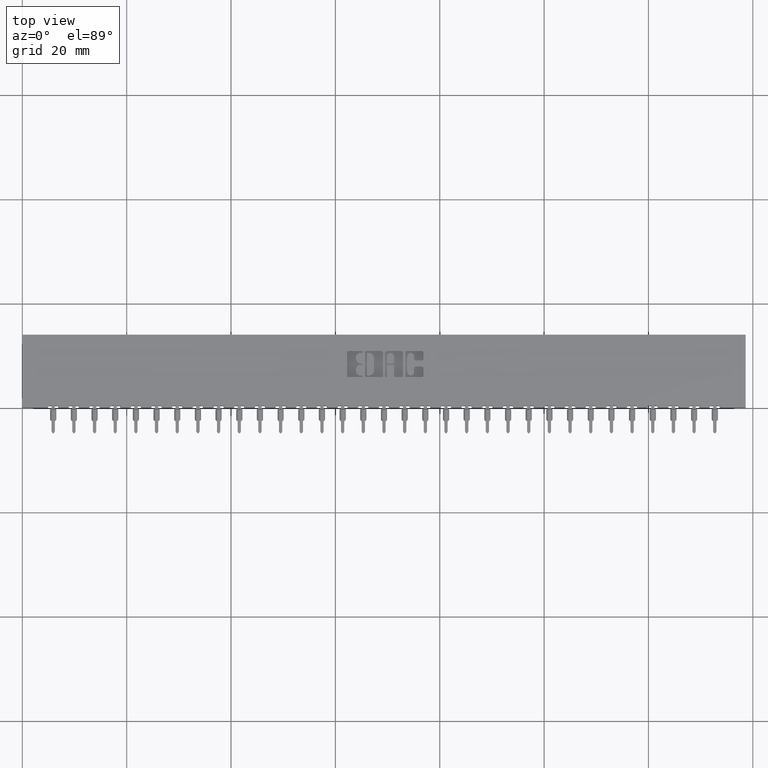
[diagram: clean part render]
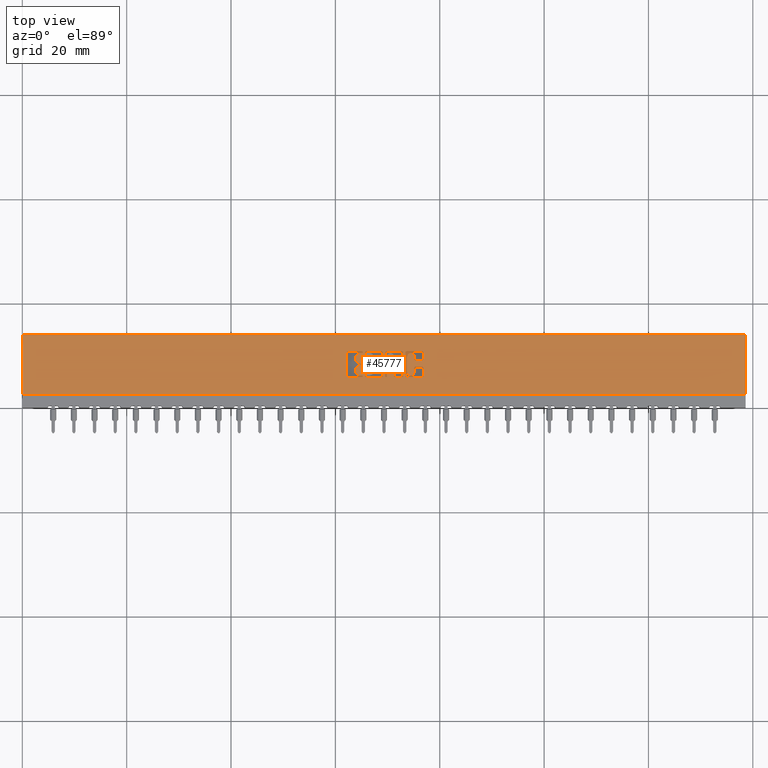
[diagram: same view with one face highlighted and labeled with its STEP entity id]
A machine part, top view. The second image highlights one B-rep face of the part: STEP entity #45777.
In plain terms, the highlighted planar face has unit normal (0, 0, -1).
Its self-contained STEP definition (entity closure, byte-faithful):
#25 = ORIENTED_EDGE ( 'NONE', *, *, #18225, .T. ) ;
#39 = CIRCLE ( 'NONE', #7371, 0.006870969142663458500 ) ;
#191 = AXIS2_PLACEMENT_3D ( 'NONE', #709, #1116, #46219 ) ;
#344 = AXIS2_PLACEMENT_3D ( 'NONE', #41040, #50298, #18938 ) ;
#515 = DIRECTION ( 'NONE',  ( 0.0000000000000000000, -1.000000000000000000, 0.0000000000000000000 ) ) ;
#533 = CARTESIAN_POINT ( 'NONE',  ( 2.930221239177992000, 0.3831578459575297200, 0.0000000000000000000 ) ) ;
#586 = EDGE_CURVE ( 'NONE', #44287, #31469, #43937, .T. ) ;
#601 = AXIS2_PLACEMENT_3D ( 'NONE', #38902, #47726, #33853 ) ;
#709 = CARTESIAN_POINT ( 'NONE',  ( 2.813660155507788000, 0.2366589681657879100, 0.0000000000000000000 ) ) ;
#819 = DIRECTION ( 'NONE',  ( -0.0000000000000000000, 0.0000000000000000000, 1.000000000000000000 ) ) ;
#821 = CIRCLE ( 'NONE', #4432, 0.006870969142663458500 ) ;
#865 = EDGE_CURVE ( 'NONE', #25310, #13126, #48112, .T. ) ;
#1116 = DIRECTION ( 'NONE',  ( -0.0000000000000000000, 0.0000000000000000000, 1.000000000000000000 ) ) ;
#1617 = ORIENTED_EDGE ( 'NONE', *, *, #9022, .T. ) ;
#1719 = CARTESIAN_POINT ( 'NONE',  ( 2.890222383097458700, 0.0000000000000000000, 0.0000000000000000000 ) ) ;
#1766 = DIRECTION ( 'NONE',  ( 0.0000000000000000000, -1.000000000000000000, 0.0000000000000000000 ) ) ;
#1777 = AXIS2_PLACEMENT_3D ( 'NONE', #26082, #53456, #57175 ) ;
#1850 = CARTESIAN_POINT ( 'NONE',  ( 2.761146319917450400, 0.3083133606535456400, 0.0000000000000000000 ) ) ;
#1866 = EDGE_CURVE ( 'NONE', #7632, #11932, #48678, .T. ) ;
#2001 = ORIENTED_EDGE ( 'NONE', *, *, #16145, .F. ) ;
#2078 = CARTESIAN_POINT ( 'NONE',  ( 3.025678631909940500, 0.2366589681657830500, 0.0000000000000000000 ) ) ;
#2157 = CIRCLE ( 'NONE', #6348, 0.006870969142662365600 ) ;
#2186 = LINE ( 'NONE', #23171, #23309 ) ;
#2228 = VECTOR ( 'NONE', #49773, 39.37007874015748100 ) ;
#2237 = DIRECTION ( 'NONE',  ( 1.000000000000000000, 0.0000000000000000000, 0.0000000000000000000 ) ) ;
#2546 = CARTESIAN_POINT ( 'NONE',  ( 3.015862961706167000, 0.3539562271012335300, 0.0000000000000000000 ) ) ;
#2630 = FACE_BOUND ( 'NONE', #2916, .T. ) ;
#2669 = CARTESIAN_POINT ( 'NONE',  ( 0.0000000000000000000, 0.3063502266127576300, 0.0000000000000000000 ) ) ;
#2715 = CARTESIAN_POINT ( 'NONE',  ( 3.025678631909972400, 0.4133410318341949100, 0.0000000000000000000 ) ) ;
#2916 = EDGE_LOOP ( 'NONE', ( #51493, #12978, #35678, #29991, #17059, #57992, #40300, #24093 ) ) ;
#3117 = VECTOR ( 'NONE', #58048, 39.37007874015748100 ) ;
#3295 = CARTESIAN_POINT ( 'NONE',  ( 0.0000000000000000000, 0.4231567020380511100, 0.0000000000000000000 ) ) ;
#3330 = CIRCLE ( 'NONE', #10749, 0.009815670203805798900 ) ;
#3541 = VERTEX_POINT ( 'NONE', #33580 ) ;
#3812 = AXIS2_PLACEMENT_3D ( 'NONE', #6633, #24377, #42143 ) ;
#3835 = DIRECTION ( 'NONE',  ( -0.0000000000000000000, 0.0000000000000000000, 1.000000000000000000 ) ) ;
#3896 = CARTESIAN_POINT ( 'NONE',  ( 2.594770709963010200, 0.4133410318342102300, 0.0000000000000000000 ) ) ;
#3909 = CIRCLE ( 'NONE', #37531, 0.009815670203840221000 ) ;
#3997 = DIRECTION ( 'NONE',  ( -0.0000000000000000000, 0.0000000000000000000, 1.000000000000000000 ) ) ;
#4093 = VERTEX_POINT ( 'NONE', #7388 ) ;
#4388 = CARTESIAN_POINT ( 'NONE',  ( 2.562133606415414500, 0.2405852362473102900, 0.0000000000000000000 ) ) ;
#4401 = VERTEX_POINT ( 'NONE', #43329 ) ;
#4432 = AXIS2_PLACEMENT_3D ( 'NONE', #13244, #40252, #31302 ) ;
#4486 = DIRECTION ( 'NONE',  ( 0.0000000000000000000, 1.000000000000000000, -0.0000000000000000000 ) ) ;
#4632 = VERTEX_POINT ( 'NONE', #10421 ) ;
#4972 = VERTEX_POINT ( 'NONE', #14098 ) ;
#5032 = CARTESIAN_POINT ( 'NONE',  ( 2.900038053301265500, 0.2268432979619832700, 0.0000000000000000000 ) ) ;
#5134 = VERTEX_POINT ( 'NONE', #54828 ) ;
#5210 = DIRECTION ( 'NONE',  ( 1.000000000000000000, 0.0000000000000000000, 0.0000000000000000000 ) ) ;
#5254 = CARTESIAN_POINT ( 'NONE',  ( 3.025678631909972400, 0.0000000000000000000, 0.0000000000000000000 ) ) ;
#5375 = CARTESIAN_POINT ( 'NONE',  ( 2.584955039759169200, 0.4133410318342102300, 0.0000000000000000000 ) ) ;
#5401 = CIRCLE ( 'NONE', #19028, 0.009815670203811809700 ) ;
#5565 = VECTOR ( 'NONE', #46391, 39.37007874015748100 ) ;
#5567 = AXIS2_PLACEMENT_3D ( 'NONE', #20339, #16002, #24650 ) ;
#5614 = VECTOR ( 'NONE', #5210, 39.37007874015748100 ) ;
#5669 = CARTESIAN_POINT ( 'NONE',  ( 0.0000000000000000000, 0.5500000000000000400, 0.0000000000000000000 ) ) ;
#5790 = AXIS2_PLACEMENT_3D ( 'NONE', #533, #27137, #49040 ) ;
#5812 = DIRECTION ( 'NONE',  ( 1.000000000000000000, 0.0000000000000000000, 0.0000000000000000000 ) ) ;
#6030 = CIRCLE ( 'NONE', #5790, 0.02625691779517394200 ) ;
#6254 = ORIENTED_EDGE ( 'NONE', *, *, #25311, .F. ) ;
#6348 = AXIS2_PLACEMENT_3D ( 'NONE', #54491, #36498, #36703 ) ;
#6357 = VERTEX_POINT ( 'NONE', #33064 ) ;
#6442 = CARTESIAN_POINT ( 'NONE',  ( 2.457842110619938400, 0.4231567020380327900, 0.0000000000000000000 ) ) ;
#6633 = CARTESIAN_POINT ( 'NONE',  ( 2.457842110619938400, 0.4133410318342102300, 0.0000000000000000000 ) ) ;
#6701 = ORIENTED_EDGE ( 'NONE', *, *, #41328, .F. ) ;
#6752 = AXIS2_PLACEMENT_3D ( 'NONE', #49732, #36423, #14070 ) ;
#6757 = CARTESIAN_POINT ( 'NONE',  ( 2.903964321382818800, 0.2668421540424530900, 0.0000000000000000000 ) ) ;
#6853 = DIRECTION ( 'NONE',  ( 1.000000000000000000, 0.0000000000000000000, 0.0000000000000000000 ) ) ;
#6901 = CARTESIAN_POINT ( 'NONE',  ( 2.562133606535351500, 0.4231567020380327900, 0.0000000000000000000 ) ) ;
#6914 = LINE ( 'NONE', #54421, #42044 ) ;
#6949 = VERTEX_POINT ( 'NONE', #29181 ) ;
#7042 = EDGE_CURVE ( 'NONE', #24732, #36092, #34093, .T. ) ;
#7091 = ORIENTED_EDGE ( 'NONE', *, *, #29353, .F. ) ;
#7102 = ORIENTED_EDGE ( 'NONE', *, *, #47464, .F. ) ;
#7119 = PLANE ( 'NONE',  #30835 ) ;
#7371 = AXIS2_PLACEMENT_3D ( 'NONE', #13708, #45045, #18239 ) ;
#7388 = CARTESIAN_POINT ( 'NONE',  ( 2.548637060005084300, 0.3181290308573568900, 0.0000000000000000000 ) ) ;
#7580 = CARTESIAN_POINT ( 'NONE',  ( 2.548637060005084300, 0.3632811137948584500, 0.0000000000000000000 ) ) ;
#7632 = VERTEX_POINT ( 'NONE', #57340 ) ;
#7817 = VECTOR ( 'NONE', #38431, 39.37007874015748100 ) ;
#7846 = VERTEX_POINT ( 'NONE', #14231 ) ;
#8098 = EDGE_CURVE ( 'NONE', #31469, #4972, #55645, .T. ) ;
#8107 = VECTOR ( 'NONE', #51156, 39.37007874015748100 ) ;
#8168 = ORIENTED_EDGE ( 'NONE', *, *, #29910, .T. ) ;
#8277 = CARTESIAN_POINT ( 'NONE',  ( -1.123269580619412500E-014, 0.3181290308572512500, 0.0000000000000000000 ) ) ;
#8370 = ORIENTED_EDGE ( 'NONE', *, *, #29750, .F. ) ;
#8780 = CARTESIAN_POINT ( 'NONE',  ( 2.562133606535351500, 0.4162857328953863400, 0.0000000000000000000 ) ) ;
#8992 = LINE ( 'NONE', #15161, #30078 ) ;
#9022 = EDGE_CURVE ( 'NONE', #9476, #55002, #2186, .T. ) ;
#9329 = VECTOR ( 'NONE', #52957, 39.37007874015748100 ) ;
#9387 = VECTOR ( 'NONE', #31351, 39.37007874015748100 ) ;
#9467 = LINE ( 'NONE', #36361, #43860 ) ;
#9476 = VERTEX_POINT ( 'NONE', #5669 ) ;
#9697 = EDGE_CURVE ( 'NONE', #4632, #52116, #47117, .T. ) ;
#9950 = EDGE_CURVE ( 'NONE', #6949, #37586, #39, .T. ) ;
#10301 = VERTEX_POINT ( 'NONE', #37357 ) ;
#10353 = VECTOR ( 'NONE', #49148, 39.37007874015748100 ) ;
#10359 = VERTEX_POINT ( 'NONE', #37928 ) ;
#10407 = LINE ( 'NONE', #3295, #24535 ) ;
#10421 = CARTESIAN_POINT ( 'NONE',  ( 2.594770709963010200, 0.4231567020380511100, 0.0000000000000000000 ) ) ;
#10749 = AXIS2_PLACEMENT_3D ( 'NONE', #41311, #23774, #41909 ) ;
#10902 = DIRECTION ( 'NONE',  ( -1.000000000000000000, -1.189163988687022500E-013, 0.0000000000000000000 ) ) ;
#11069 = DIRECTION ( 'NONE',  ( -1.000000000000000000, 0.0000000000000000000, -0.0000000000000000000 ) ) ;
#11090 = VECTOR ( 'NONE', #39279, 39.37007874015748100 ) ;
#11217 = CARTESIAN_POINT ( 'NONE',  ( 2.956478156973166200, 0.0000000000000000000, 0.0000000000000000000 ) ) ;
#11346 = CIRCLE ( 'NONE', #32206, 0.009815670203787221800 ) ;
#11452 = CARTESIAN_POINT ( 'NONE',  ( 2.517226915352909900, 0.3780046191005198600, 0.0000000000000000000 ) ) ;
#11493 = CARTESIAN_POINT ( 'NONE',  ( -2.860952991546988700E-014, 0.2405852362470056200, 0.0000000000000000000 ) ) ;
#11705 = CIRCLE ( 'NONE', #54651, 0.009815670203805252500 ) ;
#11730 = EDGE_CURVE ( 'NONE', #39444, #7846, #34689, .T. ) ;
#11787 = ORIENTED_EDGE ( 'NONE', *, *, #44050, .F. ) ;
#11932 = VERTEX_POINT ( 'NONE', #54553 ) ;
#11940 = CARTESIAN_POINT ( 'NONE',  ( -0.0000000000000000000, 0.4094147637527357800, 0.0000000000000000000 ) ) ;
#12238 = CARTESIAN_POINT ( 'NONE',  ( 0.0000000000000000000, 0.4231567020380327900, 0.0000000000000000000 ) ) ;
#12509 = ORIENTED_EDGE ( 'NONE', *, *, #46508, .F. ) ;
#12786 = ORIENTED_EDGE ( 'NONE', *, *, #23834, .T. ) ;
#12842 = VERTEX_POINT ( 'NONE', #26630 ) ;
#12902 = LINE ( 'NONE', #12238, #41627 ) ;
#12909 = AXIS2_PLACEMENT_3D ( 'NONE', #16819, #48144, #21341 ) ;
#12930 = ORIENTED_EDGE ( 'NONE', *, *, #42497, .F. ) ;
#12978 = ORIENTED_EDGE ( 'NONE', *, *, #22365, .F. ) ;
#12987 = CARTESIAN_POINT ( 'NONE',  ( 2.863229290037010900, 0.2268432979619847100, 0.0000000000000000000 ) ) ;
#13004 = ORIENTED_EDGE ( 'NONE', *, *, #865, .T. ) ;
#13059 = CARTESIAN_POINT ( 'NONE',  ( 2.548637060005109600, 0.2719953808994904900, 0.0000000000000000000 ) ) ;
#13126 = VERTEX_POINT ( 'NONE', #39830 ) ;
#13191 = FACE_BOUND ( 'NONE', #49340, .T. ) ;
#13244 = CARTESIAN_POINT ( 'NONE',  ( 2.562133606535309700, 0.3250000000000204400, 0.0000000000000000000 ) ) ;
#13288 = EDGE_CURVE ( 'NONE', #49811, #39794, #2157, .T. ) ;
#13443 = DIRECTION ( 'NONE',  ( 1.000000000000000000, 0.0000000000000000000, 0.0000000000000000000 ) ) ;
#13493 = CARTESIAN_POINT ( 'NONE',  ( 2.751330649713647200, 0.2337142671046480400, 0.0000000000000000000 ) ) ;
#13561 = DIRECTION ( 'NONE',  ( -0.0000000000000000000, 0.0000000000000000000, 1.000000000000000000 ) ) ;
#13708 = CARTESIAN_POINT ( 'NONE',  ( 2.562133606535309700, 0.3250000000000204400, 0.0000000000000000000 ) ) ;
#13992 = DIRECTION ( 'NONE',  ( -0.0000000000000000000, 0.0000000000000000000, 1.000000000000000000 ) ) ;
#14032 = CARTESIAN_POINT ( 'NONE',  ( 0.0000000000000000000, 0.2268432979619847100, 0.0000000000000000000 ) ) ;
#14070 = DIRECTION ( 'NONE',  ( 1.000000000000000000, 0.0000000000000000000, 0.0000000000000000000 ) ) ;
#14098 = CARTESIAN_POINT ( 'NONE',  ( 2.720411288571669600, 0.2366589681657900200, 0.0000000000000000000 ) ) ;
#14224 = ORIENTED_EDGE ( 'NONE', *, *, #47468, .T. ) ;
#14231 = CARTESIAN_POINT ( 'NONE',  ( 2.548637060005109600, 0.2405852362473086800, 0.0000000000000000000 ) ) ;
#14290 = CARTESIAN_POINT ( 'NONE',  ( 2.562133606535351500, 0.4094147637527357800, 0.0000000000000000000 ) ) ;
#14338 = AXIS2_PLACEMENT_3D ( 'NONE', #16303, #52139, #56620 ) ;
#14537 = VERTEX_POINT ( 'NONE', #33421 ) ;
#14577 = CARTESIAN_POINT ( 'NONE',  ( 2.448026440416115600, 0.0000000000000000000, 0.0000000000000000000 ) ) ;
#14630 = FACE_OUTER_BOUND ( 'NONE', #53766, .T. ) ;
#14695 = CARTESIAN_POINT ( 'NONE',  ( 2.863229290037014000, 0.4231567020380067000, 0.0000000000000000000 ) ) ;
#14703 = AXIS2_PLACEMENT_3D ( 'NONE', #1850, #42064, #2237 ) ;
#14904 = VECTOR ( 'NONE', #41135, 39.37007874015748100 ) ;
#14954 = CARTESIAN_POINT ( 'NONE',  ( 2.517226915352927600, 0.2719953808994904900, 0.0000000000000000000 ) ) ;
#15155 = EDGE_CURVE ( 'NONE', #11932, #4632, #10407, .T. ) ;
#15161 = CARTESIAN_POINT ( 'NONE',  ( -1.634053534411922500E-015, 0.2268432979619673700, 0.0000000000000000000 ) ) ;
#15252 = CIRCLE ( 'NONE', #37361, 0.009815670203806891800 ) ;
#15323 = ORIENTED_EDGE ( 'NONE', *, *, #39029, .F. ) ;
#15533 = CIRCLE ( 'NONE', #6752, 0.009815670203806891800 ) ;
#15876 = CIRCLE ( 'NONE', #49012, 0.009815670203796511200 ) ;
#15908 = EDGE_CURVE ( 'NONE', #24732, #42483, #48953, .T. ) ;
#15946 = LINE ( 'NONE', #11493, #26494 ) ;
#16002 = DIRECTION ( 'NONE',  ( -0.0000000000000000000, 0.0000000000000000000, 1.000000000000000000 ) ) ;
#16145 = EDGE_CURVE ( 'NONE', #50229, #26658, #11705, .T. ) ;
#16303 = CARTESIAN_POINT ( 'NONE',  ( 2.863229290037011800, 0.4133410318342105000, 0.0000000000000000000 ) ) ;
#16318 = EDGE_CURVE ( 'NONE', #4093, #32734, #20897, .T. ) ;
#16376 = CARTESIAN_POINT ( 'NONE',  ( 2.548637060005084300, 0.2867188862052006400, 0.0000000000000000000 ) ) ;
#16430 = LINE ( 'NONE', #30825, #9329 ) ;
#16530 = CARTESIAN_POINT ( 'NONE',  ( 3.015862961706167000, 0.3637718973050387300, 0.0000000000000000000 ) ) ;
#16538 = CARTESIAN_POINT ( 'NONE',  ( 2.761146319917450400, 0.3181290308573487300, 0.0000000000000000000 ) ) ;
#16553 = EDGE_CURVE ( 'NONE', #52682, #42483, #34874, .T. ) ;
#16577 = CIRCLE ( 'NONE', #14703, 0.009815670203803066700 ) ;
#16681 = VERTEX_POINT ( 'NONE', #2078 ) ;
#16819 = CARTESIAN_POINT ( 'NONE',  ( 2.863229290037010900, 0.2366589681657809400, 0.0000000000000000000 ) ) ;
#16890 = DIRECTION ( 'NONE',  ( 1.000000000000000000, 0.0000000000000000000, 0.0000000000000000000 ) ) ;
#16926 = ORIENTED_EDGE ( 'NONE', *, *, #30563, .T. ) ;
#17059 = ORIENTED_EDGE ( 'NONE', *, *, #30412, .F. ) ;
#17090 = DIRECTION ( 'NONE',  ( -0.0000000000000000000, 0.0000000000000000000, 1.000000000000000000 ) ) ;
#17247 = VERTEX_POINT ( 'NONE', #28004 ) ;
#17511 = VERTEX_POINT ( 'NONE', #20929 ) ;
#17967 = DIRECTION ( 'NONE',  ( 1.000000000000000000, 0.0000000000000000000, 0.0000000000000000000 ) ) ;
#18007 = ORIENTED_EDGE ( 'NONE', *, *, #9950, .F. ) ;
#18112 = FACE_BOUND ( 'NONE', #35725, .T. ) ;
#18130 = ORIENTED_EDGE ( 'NONE', *, *, #24496, .T. ) ;
#18225 = EDGE_CURVE ( 'NONE', #39915, #53561, #50780, .T. ) ;
#18239 = DIRECTION ( 'NONE',  ( 1.000000000000000000, 0.0000000000000000000, 0.0000000000000000000 ) ) ;
#18516 = CARTESIAN_POINT ( 'NONE',  ( 2.956478156973166200, 0.3831578454992600200, 0.0000000000000000000 ) ) ;
#18938 = DIRECTION ( 'NONE',  ( 1.000000000000000000, 0.0000000000000000000, 0.0000000000000000000 ) ) ;
#19028 = AXIS2_PLACEMENT_3D ( 'NONE', #35463, #3835, #39905 ) ;
#19214 = DIRECTION ( 'NONE',  ( -0.0000000000000000000, 0.0000000000000000000, 1.000000000000000000 ) ) ;
#19630 = DIRECTION ( 'NONE',  ( -0.0000000000000000000, 0.0000000000000000000, 1.000000000000000000 ) ) ;
#19746 = ORIENTED_EDGE ( 'NONE', *, *, #21823, .T. ) ;
#19829 = LINE ( 'NONE', #11940, #7817 ) ;
#19898 = CARTESIAN_POINT ( 'NONE',  ( 2.966293827176977900, 0.3539562271012337000, 0.0000000000000000000 ) ) ;
#20339 = CARTESIAN_POINT ( 'NONE',  ( 2.562133606535351500, 0.4162857328953863400, 0.0000000000000000000 ) ) ;
#20394 = ORIENTED_EDGE ( 'NONE', *, *, #23503, .F. ) ;
#20398 = LINE ( 'NONE', #37786, #5565 ) ;
#20746 = CARTESIAN_POINT ( 'NONE',  ( 2.569004575677997800, 0.2337142671046480400, 0.0000000000000000000 ) ) ;
#20775 = VECTOR ( 'NONE', #25199, 39.37007874015748100 ) ;
#20825 = DIRECTION ( 'NONE',  ( -0.0000000000000000000, 0.0000000000000000000, 1.000000000000000000 ) ) ;
#20897 = LINE ( 'NONE', #30227, #31372 ) ;
#20915 = DIRECTION ( 'NONE',  ( 1.000000000000000000, 0.0000000000000000000, 0.0000000000000000000 ) ) ;
#20929 = CARTESIAN_POINT ( 'NONE',  ( 2.562133606415414500, 0.2268432979619858000, 0.0000000000000000000 ) ) ;
#21155 = CARTESIAN_POINT ( 'NONE',  ( 2.710595618367861900, 0.2366589681657900200, 0.0000000000000000000 ) ) ;
#21166 = ORIENTED_EDGE ( 'NONE', *, *, #27921, .F. ) ;
#21306 = DIRECTION ( 'NONE',  ( -1.000000000000000000, 0.0000000000000000000, 0.0000000000000000000 ) ) ;
#21341 = DIRECTION ( 'NONE',  ( 1.000000000000000000, 0.0000000000000000000, 0.0000000000000000000 ) ) ;
#21541 = CARTESIAN_POINT ( 'NONE',  ( 3.025678631909972400, 0.3637718973050387300, 0.0000000000000000000 ) ) ;
#21734 = LINE ( 'NONE', #42792, #30144 ) ;
#21823 = EDGE_CURVE ( 'NONE', #28000, #4401, #46849, .T. ) ;
#21845 = CARTESIAN_POINT ( 'NONE',  ( 2.890222383097458700, 0.4133410318342102300, 0.0000000000000000000 ) ) ;
#21947 = VECTOR ( 'NONE', #515, 39.37007874015748100 ) ;
#22100 = VERTEX_POINT ( 'NONE', #6901 ) ;
#22113 = LINE ( 'NONE', #14577, #53621 ) ;
#22254 = VECTOR ( 'NONE', #33480, 39.37007874015748100 ) ;
#22365 = EDGE_CURVE ( 'NONE', #4972, #7632, #30681, .T. ) ;
#22436 = DIRECTION ( 'NONE',  ( -1.000000000000000000, 0.0000000000000000000, 0.0000000000000000000 ) ) ;
#22627 = CARTESIAN_POINT ( 'NONE',  ( 3.015862961706153200, 0.2965345564089705300, 0.0000000000000000000 ) ) ;
#22647 = VERTEX_POINT ( 'NONE', #2715 ) ;
#22940 = DIRECTION ( 'NONE',  ( 1.000000000000000000, 0.0000000000000000000, 0.0000000000000000000 ) ) ;
#22976 = CARTESIAN_POINT ( 'NONE',  ( 2.751330649713647200, 0.0000000000000000000, 0.0000000000000000000 ) ) ;
#23029 = VERTEX_POINT ( 'NONE', #14695 ) ;
#23171 = CARTESIAN_POINT ( 'NONE',  ( 0.0000000000000000000, 0.5500000000000000400, 0.0000000000000000000 ) ) ;
#23184 = DIRECTION ( 'NONE',  ( 1.000000000000000000, 0.0000000000000000000, 0.0000000000000000000 ) ) ;
#23309 = VECTOR ( 'NONE', #41142, 39.37007874015748100 ) ;
#23503 = EDGE_CURVE ( 'NONE', #32330, #17511, #8992, .T. ) ;
#23765 = CARTESIAN_POINT ( 'NONE',  ( 2.956478156973179100, 0.2965345564089687500, 0.0000000000000000000 ) ) ;
#23774 = DIRECTION ( 'NONE',  ( -0.0000000000000000000, 0.0000000000000000000, 1.000000000000000000 ) ) ;
#23834 = EDGE_CURVE ( 'NONE', #52682, #28000, #6914, .T. ) ;
#23983 = VERTEX_POINT ( 'NONE', #37205 ) ;
#24093 = ORIENTED_EDGE ( 'NONE', *, *, #15155, .F. ) ;
#24258 = ORIENTED_EDGE ( 'NONE', *, *, #49787, .T. ) ;
#24377 = DIRECTION ( 'NONE',  ( -0.0000000000000000000, 0.0000000000000000000, 1.000000000000000000 ) ) ;
#24496 = EDGE_CURVE ( 'NONE', #4093, #14537, #51781, .T. ) ;
#24535 = VECTOR ( 'NONE', #56824, 39.37007874015748100 ) ;
#24650 = DIRECTION ( 'NONE',  ( 1.000000000000000000, 0.0000000000000000000, 0.0000000000000000000 ) ) ;
#24732 = VERTEX_POINT ( 'NONE', #12987 ) ;
#24930 = ORIENTED_EDGE ( 'NONE', *, *, #38520, .F. ) ;
#25077 = CIRCLE ( 'NONE', #50127, 0.006870969142657995000 ) ;
#25199 = DIRECTION ( 'NONE',  ( 1.000000000000000000, 0.0000000000000000000, 0.0000000000000000000 ) ) ;
#25310 = VERTEX_POINT ( 'NONE', #49113 ) ;
#25311 = EDGE_CURVE ( 'NONE', #42321, #29313, #15252, .T. ) ;
#25355 = EDGE_CURVE ( 'NONE', #39915, #38232, #25077, .T. ) ;
#25654 = LINE ( 'NONE', #8277, #3117 ) ;
#25681 = DIRECTION ( 'NONE',  ( -0.0000000000000000000, 0.0000000000000000000, 1.000000000000000000 ) ) ;
#25872 = EDGE_CURVE ( 'NONE', #37586, #13126, #49481, .T. ) ;
#25933 = VERTEX_POINT ( 'NONE', #53553 ) ;
#26082 = CARTESIAN_POINT ( 'NONE',  ( 2.710595618367828100, 0.4133410318342100600, 0.0000000000000000000 ) ) ;
#26133 = CIRCLE ( 'NONE', #53039, 0.006870969142648706400 ) ;
#26261 = ORIENTED_EDGE ( 'NONE', *, *, #40719, .F. ) ;
#26411 = CARTESIAN_POINT ( 'NONE',  ( 2.813660155507786300, 0.2268432979619847100, 0.0000000000000000000 ) ) ;
#26494 = VECTOR ( 'NONE', #10902, 39.37007874015748100 ) ;
#26526 = DIRECTION ( 'NONE',  ( -0.0000000000000000000, 0.0000000000000000000, 1.000000000000000000 ) ) ;
#26630 = CARTESIAN_POINT ( 'NONE',  ( 2.956478156973166200, 0.3637718973050452800, 0.0000000000000000000 ) ) ;
#26658 = VERTEX_POINT ( 'NONE', #21541 ) ;
#26898 = DIRECTION ( 'NONE',  ( 1.000000000000000000, 0.0000000000000000000, 0.0000000000000000000 ) ) ;
#27137 = DIRECTION ( 'NONE',  ( -0.0000000000000000000, 0.0000000000000000000, 1.000000000000000000 ) ) ;
#27391 = DIRECTION ( 'NONE',  ( -0.0000000000000000000, 0.0000000000000000000, 1.000000000000000000 ) ) ;
#27587 = DIRECTION ( 'NONE',  ( 1.000000000000000000, 0.0000000000000000000, 0.0000000000000000000 ) ) ;
#27698 = CIRCLE ( 'NONE', #40905, 0.006870969142662365600 ) ;
#27796 = DIRECTION ( 'NONE',  ( 0.0000000000000000000, -1.000000000000000000, 0.0000000000000000000 ) ) ;
#27902 = DIRECTION ( 'NONE',  ( 1.000000000000000000, 0.0000000000000000000, 0.0000000000000000000 ) ) ;
#27921 = EDGE_CURVE ( 'NONE', #10359, #3541, #11346, .T. ) ;
#27943 = ORIENTED_EDGE ( 'NONE', *, *, #43830, .F. ) ;
#27955 = DIRECTION ( 'NONE',  ( 1.000000000000000000, 0.0000000000000000000, 0.0000000000000000000 ) ) ;
#27976 = CARTESIAN_POINT ( 'NONE',  ( 2.900038053301265500, 0.2366589681657900200, 0.0000000000000000000 ) ) ;
#28000 = VERTEX_POINT ( 'NONE', #45658 ) ;
#28004 = CARTESIAN_POINT ( 'NONE',  ( 3.015862961706134100, 0.2268432979619832700, 0.0000000000000000000 ) ) ;
#28056 = ORIENTED_EDGE ( 'NONE', *, *, #45279, .F. ) ;
#28150 = AXIS2_PLACEMENT_3D ( 'NONE', #13059, #57913, #13443 ) ;
#28272 = CARTESIAN_POINT ( 'NONE',  ( 2.737588711428331000, 0.0000000000000000000, 0.0000000000000000000 ) ) ;
#28351 = VERTEX_POINT ( 'NONE', #35686 ) ;
#29181 = CARTESIAN_POINT ( 'NONE',  ( 2.569004575677973400, 0.3250000000000204400, 0.0000000000000000000 ) ) ;
#29275 = DIRECTION ( 'NONE',  ( -0.0000000000000000000, 0.0000000000000000000, 1.000000000000000000 ) ) ;
#29290 = CARTESIAN_POINT ( 'NONE',  ( 2.966293827176966800, 0.3063502266127576300, 0.0000000000000000000 ) ) ;
#29313 = VERTEX_POINT ( 'NONE', #5032 ) ;
#29343 = DIRECTION ( 'NONE',  ( 0.0000000000000000000, 0.0000000000000000000, -1.000000000000000000 ) ) ;
#29353 = EDGE_CURVE ( 'NONE', #6357, #42850, #42274, .T. ) ;
#29394 = ORIENTED_EDGE ( 'NONE', *, *, #35215, .T. ) ;
#29593 = AXIS2_PLACEMENT_3D ( 'NONE', #46434, #19630, #50957 ) ;
#29750 = EDGE_CURVE ( 'NONE', #32734, #6949, #821, .T. ) ;
#29769 = VECTOR ( 'NONE', #55819, 39.37007874015748100 ) ;
#29910 = EDGE_CURVE ( 'NONE', #23983, #36092, #38012, .T. ) ;
#29991 = ORIENTED_EDGE ( 'NONE', *, *, #586, .F. ) ;
#30078 = VECTOR ( 'NONE', #55299, 39.37007874015748100 ) ;
#30144 = VECTOR ( 'NONE', #46922, 39.37007874015748100 ) ;
#30192 = CARTESIAN_POINT ( 'NONE',  ( 2.873044960240806600, 0.2366589681657809400, 0.0000000000000000000 ) ) ;
#30227 = CARTESIAN_POINT ( 'NONE',  ( -0.0000000000000000000, 0.3181290308573568900, 0.0000000000000000000 ) ) ;
#30345 = DIRECTION ( 'NONE',  ( 1.000000000000000000, 0.0000000000000000000, 0.0000000000000000000 ) ) ;
#30412 = EDGE_CURVE ( 'NONE', #28351, #44287, #15533, .T. ) ;
#30563 = EDGE_CURVE ( 'NONE', #47564, #23029, #44892, .T. ) ;
#30681 = LINE ( 'NONE', #45476, #41149 ) ;
#30749 = LINE ( 'NONE', #48508, #11090 ) ;
#30825 = CARTESIAN_POINT ( 'NONE',  ( 5.458000000000000200, 0.1000000000000000100, 0.0000000000000000000 ) ) ;
#30835 = AXIS2_PLACEMENT_3D ( 'NONE', #56520, #29343, #11069 ) ;
#31277 = CARTESIAN_POINT ( 'NONE',  ( 2.562133606415388800, 0.3181290308573568900, 0.0000000000000000000 ) ) ;
#31302 = DIRECTION ( 'NONE',  ( 1.000000000000000000, 0.0000000000000000000, 0.0000000000000000000 ) ) ;
#31351 = DIRECTION ( 'NONE',  ( 0.0000000000000000000, 1.000000000000000000, -0.0000000000000000000 ) ) ;
#31372 = VECTOR ( 'NONE', #34756, 39.37007874015748100 ) ;
#31402 = ORIENTED_EDGE ( 'NONE', *, *, #37875, .F. ) ;
#31469 = VERTEX_POINT ( 'NONE', #47250 ) ;
#31650 = CARTESIAN_POINT ( 'NONE',  ( 5.458000000000000200, 0.1000000000000000100, 0.0000000000000000000 ) ) ;
#31945 = AXIS2_PLACEMENT_3D ( 'NONE', #36256, #44839, #26898 ) ;
#32038 = VECTOR ( 'NONE', #27902, 39.37007874015748100 ) ;
#32108 = CARTESIAN_POINT ( 'NONE',  ( -0.0000000000000000000, 0.4231567020380067000, 0.0000000000000000000 ) ) ;
#32135 = VERTEX_POINT ( 'NONE', #42847 ) ;
#32206 = AXIS2_PLACEMENT_3D ( 'NONE', #22627, #13561, #23184 ) ;
#32330 = VERTEX_POINT ( 'NONE', #46260 ) ;
#32504 = VERTEX_POINT ( 'NONE', #48591 ) ;
#32640 = AXIS2_PLACEMENT_3D ( 'NONE', #45213, #44828, #22940 ) ;
#32647 = AXIS2_PLACEMENT_3D ( 'NONE', #42293, #19214, #5812 ) ;
#32734 = VERTEX_POINT ( 'NONE', #31277 ) ;
#33038 = ORIENTED_EDGE ( 'NONE', *, *, #36119, .F. ) ;
#33064 = CARTESIAN_POINT ( 'NONE',  ( 2.900038053301299700, 0.4231567020380511100, 0.0000000000000000000 ) ) ;
#33316 = EDGE_CURVE ( 'NONE', #39794, #7846, #15946, .T. ) ;
#33421 = CARTESIAN_POINT ( 'NONE',  ( 2.517226915352927600, 0.2867188862052006400, 0.0000000000000000000 ) ) ;
#33480 = DIRECTION ( 'NONE',  ( -1.000000000000000000, 0.0000000000000000000, 0.0000000000000000000 ) ) ;
#33509 = CIRCLE ( 'NONE', #29593, 0.009815670203787768200 ) ;
#33580 = CARTESIAN_POINT ( 'NONE',  ( 3.015862961706156800, 0.3063502266127576300, 0.0000000000000000000 ) ) ;
#33653 = EDGE_CURVE ( 'NONE', #22647, #5134, #3909, .T. ) ;
#33691 = EDGE_CURVE ( 'NONE', #52116, #28351, #9467, .T. ) ;
#33853 = DIRECTION ( 'NONE',  ( 1.000000000000000000, 0.0000000000000000000, 0.0000000000000000000 ) ) ;
#33860 = CARTESIAN_POINT ( 'NONE',  ( 0.0000000000000000000, 0.4231567020380511100, 0.0000000000000000000 ) ) ;
#33914 = DIRECTION ( 'NONE',  ( -1.000000000000000000, 0.0000000000000000000, 0.0000000000000000000 ) ) ;
#34093 = CIRCLE ( 'NONE', #12909, 0.009815670203795964800 ) ;
#34228 = ORIENTED_EDGE ( 'NONE', *, *, #55761, .F. ) ;
#34689 = CIRCLE ( 'NONE', #28150, 0.03141014465218205200 ) ;
#34741 = EDGE_CURVE ( 'NONE', #16681, #10359, #50763, .T. ) ;
#34756 = DIRECTION ( 'NONE',  ( 1.000000000000000000, 0.0000000000000000000, 0.0000000000000000000 ) ) ;
#34874 = CIRCLE ( 'NONE', #191, 0.009815670203803066700 ) ;
#34980 = EDGE_CURVE ( 'NONE', #57769, #25933, #16577, .T. ) ;
#35215 = EDGE_CURVE ( 'NONE', #38584, #40332, #53685, .T. ) ;
#35295 = EDGE_CURVE ( 'NONE', #50699, #40332, #50190, .T. ) ;
#35346 = VERTEX_POINT ( 'NONE', #14290 ) ;
#35463 = CARTESIAN_POINT ( 'NONE',  ( 2.966293827176977900, 0.3637718973050452800, 0.0000000000000000000 ) ) ;
#35678 = ORIENTED_EDGE ( 'NONE', *, *, #8098, .F. ) ;
#35686 = CARTESIAN_POINT ( 'NONE',  ( 2.584955039759169200, 0.2366589681657900200, 0.0000000000000000000 ) ) ;
#35725 = EDGE_LOOP ( 'NONE', ( #24258, #28056, #13004, #53442, #18007, #8370, #47325, #18130, #24930, #45830, #57432, #44911, #51434, #20394, #37186, #45608, #31402, #12930, #47074, #54443, #27943 ) ) ;
#35754 = EDGE_CURVE ( 'NONE', #17511, #49811, #27698, .T. ) ;
#36066 = DIRECTION ( 'NONE',  ( 0.0000000000000000000, 1.000000000000000000, -0.0000000000000000000 ) ) ;
#36092 = VERTEX_POINT ( 'NONE', #30192 ) ;
#36119 = EDGE_CURVE ( 'NONE', #23983, #23029, #50756, .T. ) ;
#36145 = CARTESIAN_POINT ( 'NONE',  ( 2.448026440416115600, 0.4133410318342102300, 0.0000000000000000000 ) ) ;
#36242 = CARTESIAN_POINT ( 'NONE',  ( 3.025678631909940500, 0.0000000000000000000, 0.0000000000000000000 ) ) ;
#36256 = CARTESIAN_POINT ( 'NONE',  ( 2.930221239177998700, 0.2668421540424530900, 0.0000000000000000000 ) ) ;
#36289 = CARTESIAN_POINT ( 'NONE',  ( 5.458000000000000200, 0.5500000000000000400, 0.0000000000000000000 ) ) ;
#36361 = CARTESIAN_POINT ( 'NONE',  ( 2.584955039759169200, 0.0000000000000000000, 0.0000000000000000000 ) ) ;
#36423 = DIRECTION ( 'NONE',  ( -0.0000000000000000000, 0.0000000000000000000, 1.000000000000000000 ) ) ;
#36498 = DIRECTION ( 'NONE',  ( -0.0000000000000000000, 0.0000000000000000000, 1.000000000000000000 ) ) ;
#36561 = DIRECTION ( 'NONE',  ( -0.0000000000000000000, 0.0000000000000000000, 1.000000000000000000 ) ) ;
#36703 = DIRECTION ( 'NONE',  ( 1.000000000000000000, 0.0000000000000000000, 0.0000000000000000000 ) ) ;
#36960 = CARTESIAN_POINT ( 'NONE',  ( 2.744459680570987500, 0.2337142671046480400, 0.0000000000000000000 ) ) ;
#37108 = VERTEX_POINT ( 'NONE', #36145 ) ;
#37150 = CARTESIAN_POINT ( 'NONE',  ( 2.873044960240806600, 0.0000000000000000000, 0.0000000000000000000 ) ) ;
#37186 = ORIENTED_EDGE ( 'NONE', *, *, #54387, .F. ) ;
#37205 = CARTESIAN_POINT ( 'NONE',  ( 2.873044960240806600, 0.4133410318342010700, 0.0000000000000000000 ) ) ;
#37357 = CARTESIAN_POINT ( 'NONE',  ( 2.903964321382818800, 0.3831578459575297200, 0.0000000000000000000 ) ) ;
#37361 = AXIS2_PLACEMENT_3D ( 'NONE', #27976, #819, #41212 ) ;
#37508 = ORIENTED_EDGE ( 'NONE', *, *, #51615, .F. ) ;
#37531 = AXIS2_PLACEMENT_3D ( 'NONE', #48524, #3997, #17967 ) ;
#37557 = VECTOR ( 'NONE', #49947, 39.37007874015748100 ) ;
#37560 = EDGE_CURVE ( 'NONE', #35346, #32135, #26133, .T. ) ;
#37577 = VECTOR ( 'NONE', #27955, 39.37007874015748100 ) ;
#37586 = VERTEX_POINT ( 'NONE', #48990 ) ;
#37709 = AXIS2_PLACEMENT_3D ( 'NONE', #16376, #38117, #20915 ) ;
#37786 = CARTESIAN_POINT ( 'NONE',  ( 2.517226915352927600, 0.0000000000000000000, 0.0000000000000000000 ) ) ;
#37875 = EDGE_CURVE ( 'NONE', #40746, #37108, #54078, .T. ) ;
#37928 = CARTESIAN_POINT ( 'NONE',  ( 3.025678631909940500, 0.2965345564089705300, 0.0000000000000000000 ) ) ;
#38012 = LINE ( 'NONE', #37150, #54130 ) ;
#38117 = DIRECTION ( 'NONE',  ( -0.0000000000000000000, 0.0000000000000000000, 1.000000000000000000 ) ) ;
#38232 = VERTEX_POINT ( 'NONE', #13493 ) ;
#38368 = CARTESIAN_POINT ( 'NONE',  ( 2.594770709962976400, 0.2268432979619832700, 0.0000000000000000000 ) ) ;
#38431 = DIRECTION ( 'NONE',  ( 1.000000000000000000, 0.0000000000000000000, 0.0000000000000000000 ) ) ;
#38453 = CIRCLE ( 'NONE', #601, 0.03141014465221592800 ) ;
#38516 = ORIENTED_EDGE ( 'NONE', *, *, #40821, .F. ) ;
#38520 = EDGE_CURVE ( 'NONE', #39444, #14537, #20398, .T. ) ;
#38584 = VERTEX_POINT ( 'NONE', #6757 ) ;
#38723 = LINE ( 'NONE', #5254, #14904 ) ;
#38902 = CARTESIAN_POINT ( 'NONE',  ( 2.548637060005125600, 0.3780046191005198600, 0.0000000000000000000 ) ) ;
#39029 = EDGE_CURVE ( 'NONE', #52672, #50229, #21734, .T. ) ;
#39279 = DIRECTION ( 'NONE',  ( 0.0000000000000000000, 1.000000000000000000, -0.0000000000000000000 ) ) ;
#39444 = VERTEX_POINT ( 'NONE', #14954 ) ;
#39670 = LINE ( 'NONE', #1719, #8107 ) ;
#39794 = VERTEX_POINT ( 'NONE', #4388 ) ;
#39830 = CARTESIAN_POINT ( 'NONE',  ( 2.548637060005084300, 0.3318709691426839900, 0.0000000000000000000 ) ) ;
#39905 = DIRECTION ( 'NONE',  ( 1.000000000000000000, 0.0000000000000000000, 0.0000000000000000000 ) ) ;
#39915 = VERTEX_POINT ( 'NONE', #54191 ) ;
#39964 = ORIENTED_EDGE ( 'NONE', *, *, #34980, .T. ) ;
#40092 = LINE ( 'NONE', #22976, #21947 ) ;
#40252 = DIRECTION ( 'NONE',  ( -0.0000000000000000000, 0.0000000000000000000, 1.000000000000000000 ) ) ;
#40300 = ORIENTED_EDGE ( 'NONE', *, *, #9697, .F. ) ;
#40332 = VERTEX_POINT ( 'NONE', #48258 ) ;
#40444 = DIRECTION ( 'NONE',  ( 0.0000000000000000000, -1.000000000000000000, 0.0000000000000000000 ) ) ;
#40458 = EDGE_CURVE ( 'NONE', #53067, #10301, #6030, .T. ) ;
#40719 = EDGE_CURVE ( 'NONE', #42850, #42321, #39670, .T. ) ;
#40746 = VERTEX_POINT ( 'NONE', #6442 ) ;
#40815 = DIRECTION ( 'NONE',  ( 1.000000000000000000, 0.0000000000000000000, 0.0000000000000000000 ) ) ;
#40821 = EDGE_CURVE ( 'NONE', #47564, #53561, #15876, .T. ) ;
#40905 = AXIS2_PLACEMENT_3D ( 'NONE', #50273, #36561, #54369 ) ;
#40938 = CARTESIAN_POINT ( 'NONE',  ( 2.737588711428331000, 0.4133410318342102300, 0.0000000000000000000 ) ) ;
#41040 = CARTESIAN_POINT ( 'NONE',  ( 2.794028815100188200, 0.3083133606535528600, 0.0000000000000000000 ) ) ;
#41135 = DIRECTION ( 'NONE',  ( 0.0000000000000000000, 1.000000000000000000, -0.0000000000000000000 ) ) ;
#41142 = DIRECTION ( 'NONE',  ( -0.0000000000000000000, -1.000000000000000000, -0.0000000000000000000 ) ) ;
#41149 = VECTOR ( 'NONE', #49443, 39.37007874015748100 ) ;
#41199 = AXIS2_PLACEMENT_3D ( 'NONE', #7580, #20825, #52306 ) ;
#41212 = DIRECTION ( 'NONE',  ( 1.000000000000000000, 0.0000000000000000000, 0.0000000000000000000 ) ) ;
#41311 = CARTESIAN_POINT ( 'NONE',  ( 2.457842110619922400, 0.2366589681657900200, 0.0000000000000000000 ) ) ;
#41328 = EDGE_CURVE ( 'NONE', #29313, #17247, #53677, .T. ) ;
#41627 = VECTOR ( 'NONE', #21306, 39.37007874015748100 ) ;
#41909 = DIRECTION ( 'NONE',  ( 1.000000000000000000, 0.0000000000000000000, 0.0000000000000000000 ) ) ;
#41915 = FACE_BOUND ( 'NONE', #44873, .T. ) ;
#42044 = VECTOR ( 'NONE', #36066, 39.37007874015748100 ) ;
#42064 = DIRECTION ( 'NONE',  ( -0.0000000000000000000, 0.0000000000000000000, 1.000000000000000000 ) ) ;
#42143 = DIRECTION ( 'NONE',  ( 1.000000000000000000, 0.0000000000000000000, 0.0000000000000000000 ) ) ;
#42274 = CIRCLE ( 'NONE', #32647, 0.009815670203841313900 ) ;
#42275 = AXIS2_PLACEMENT_3D ( 'NONE', #21155, #25681, #30345 ) ;
#42293 = CARTESIAN_POINT ( 'NONE',  ( 2.900038053301299700, 0.4133410318342102300, 0.0000000000000000000 ) ) ;
#42321 = VERTEX_POINT ( 'NONE', #56341 ) ;
#42483 = VERTEX_POINT ( 'NONE', #26411 ) ;
#42497 = EDGE_CURVE ( 'NONE', #22100, #40746, #12902, .T. ) ;
#42678 = ORIENTED_EDGE ( 'NONE', *, *, #15908, .T. ) ;
#42792 = CARTESIAN_POINT ( 'NONE',  ( -0.0000000000000000000, 0.3539562271012337000, 0.0000000000000000000 ) ) ;
#42847 = CARTESIAN_POINT ( 'NONE',  ( 2.569004575678000000, 0.4162857328953863400, 0.0000000000000000000 ) ) ;
#42850 = VERTEX_POINT ( 'NONE', #21845 ) ;
#42900 = EDGE_CURVE ( 'NONE', #46829, #55002, #16430, .T. ) ;
#43170 = VECTOR ( 'NONE', #22436, 39.37007874015748100 ) ;
#43329 = CARTESIAN_POINT ( 'NONE',  ( 2.794028815100188200, 0.3181290308573498900, 0.0000000000000000000 ) ) ;
#43830 = EDGE_CURVE ( 'NONE', #48704, #35346, #19829, .T. ) ;
#43860 = VECTOR ( 'NONE', #40444, 39.37007874015748100 ) ;
#43923 = ORIENTED_EDGE ( 'NONE', *, *, #45358, .F. ) ;
#43937 = LINE ( 'NONE', #54108, #32038 ) ;
#44050 = EDGE_CURVE ( 'NONE', #17247, #16681, #44219, .T. ) ;
#44219 = CIRCLE ( 'NONE', #32640, 0.009815670203806345400 ) ;
#44287 = VERTEX_POINT ( 'NONE', #38368 ) ;
#44657 = CARTESIAN_POINT ( 'NONE',  ( 2.956478156973179100, 0.0000000000000000000, 0.0000000000000000000 ) ) ;
#44828 = DIRECTION ( 'NONE',  ( -0.0000000000000000000, 0.0000000000000000000, 1.000000000000000000 ) ) ;
#44839 = DIRECTION ( 'NONE',  ( -0.0000000000000000000, 0.0000000000000000000, 1.000000000000000000 ) ) ;
#44873 = EDGE_LOOP ( 'NONE', ( #2001, #15323, #55428, #43923, #57622, #47769, #29394, #51573, #50468, #34228, #21166, #51907, #11787, #6701, #6254, #26261, #7091, #12509, #51754, #55522 ) ) ;
#44892 = LINE ( 'NONE', #32108, #5614 ) ;
#44911 = ORIENTED_EDGE ( 'NONE', *, *, #13288, .F. ) ;
#45045 = DIRECTION ( 'NONE',  ( -0.0000000000000000000, 0.0000000000000000000, 1.000000000000000000 ) ) ;
#45110 = ORIENTED_EDGE ( 'NONE', *, *, #7042, .F. ) ;
#45213 = CARTESIAN_POINT ( 'NONE',  ( 3.015862961706134100, 0.2366589681657900200, 0.0000000000000000000 ) ) ;
#45279 = EDGE_CURVE ( 'NONE', #25310, #57248, #30749, .T. ) ;
#45358 = EDGE_CURVE ( 'NONE', #53067, #12842, #54555, .T. ) ;
#45476 = CARTESIAN_POINT ( 'NONE',  ( 2.720411288571669600, 0.0000000000000000000, 0.0000000000000000000 ) ) ;
#45608 = ORIENTED_EDGE ( 'NONE', *, *, #56630, .F. ) ;
#45658 = CARTESIAN_POINT ( 'NONE',  ( 2.803844485303985200, 0.3083133606535435300, 0.0000000000000000000 ) ) ;
#45777 = ADVANCED_FACE ( 'NONE', ( #41915, #18112, #14630, #2630, #13191 ), #7119, .F. ) ;
#45818 = CIRCLE ( 'NONE', #5567, 0.006870969142648706400 ) ;
#45830 = ORIENTED_EDGE ( 'NONE', *, *, #11730, .T. ) ;
#46023 = LINE ( 'NONE', #33860, #22254 ) ;
#46219 = DIRECTION ( 'NONE',  ( 1.000000000000000000, 0.0000000000000000000, 0.0000000000000000000 ) ) ;
#46260 = CARTESIAN_POINT ( 'NONE',  ( 2.457842110619918900, 0.2268432979619850500, 0.0000000000000000000 ) ) ;
#46391 = DIRECTION ( 'NONE',  ( 0.0000000000000000000, 1.000000000000000000, -0.0000000000000000000 ) ) ;
#46434 = CARTESIAN_POINT ( 'NONE',  ( 2.966293827176966800, 0.2965345564089696400, 0.0000000000000000000 ) ) ;
#46508 = EDGE_CURVE ( 'NONE', #5134, #6357, #46023, .T. ) ;
#46575 = VERTEX_POINT ( 'NONE', #55962 ) ;
#46730 = ORIENTED_EDGE ( 'NONE', *, *, #16553, .F. ) ;
#46809 = AXIS2_PLACEMENT_3D ( 'NONE', #3896, #26526, #53511 ) ;
#46829 = VERTEX_POINT ( 'NONE', #31650 ) ;
#46849 = CIRCLE ( 'NONE', #344, 0.009815670203797057700 ) ;
#46922 = DIRECTION ( 'NONE',  ( 1.000000000000000000, 0.0000000000000000000, 0.0000000000000000000 ) ) ;
#47074 = ORIENTED_EDGE ( 'NONE', *, *, #57261, .F. ) ;
#47117 = CIRCLE ( 'NONE', #46809, 0.009815670203840767500 ) ;
#47250 = CARTESIAN_POINT ( 'NONE',  ( 2.710595618367861900, 0.2268432979619832700, 0.0000000000000000000 ) ) ;
#47325 = ORIENTED_EDGE ( 'NONE', *, *, #16318, .F. ) ;
#47464 = EDGE_CURVE ( 'NONE', #32504, #46829, #51380, .T. ) ;
#47468 = EDGE_CURVE ( 'NONE', #25933, #38232, #40092, .T. ) ;
#47564 = VERTEX_POINT ( 'NONE', #55058 ) ;
#47621 = EDGE_CURVE ( 'NONE', #26658, #22647, #38723, .T. ) ;
#47726 = DIRECTION ( 'NONE',  ( -0.0000000000000000000, 0.0000000000000000000, 1.000000000000000000 ) ) ;
#47769 = ORIENTED_EDGE ( 'NONE', *, *, #49587, .F. ) ;
#48112 = CIRCLE ( 'NONE', #41199, 0.03141014465217440600 ) ;
#48144 = DIRECTION ( 'NONE',  ( -0.0000000000000000000, 0.0000000000000000000, 1.000000000000000000 ) ) ;
#48193 = ORIENTED_EDGE ( 'NONE', *, *, #56437, .T. ) ;
#48258 = CARTESIAN_POINT ( 'NONE',  ( 2.956478156973179100, 0.2668421540424530900, 0.0000000000000000000 ) ) ;
#48508 = CARTESIAN_POINT ( 'NONE',  ( 2.517226915352909900, 0.0000000000000000000, 0.0000000000000000000 ) ) ;
#48524 = CARTESIAN_POINT ( 'NONE',  ( 3.015862961706131900, 0.4133410318342110000, 0.0000000000000000000 ) ) ;
#48591 = CARTESIAN_POINT ( 'NONE',  ( 5.458000000000000200, 0.5500000000000000400, 0.0000000000000000000 ) ) ;
#48678 = CIRCLE ( 'NONE', #1777, 0.009815670203841313900 ) ;
#48704 = VERTEX_POINT ( 'NONE', #50476 ) ;
#48832 = LINE ( 'NONE', #2669, #57241 ) ;
#48953 = LINE ( 'NONE', #14032, #10353 ) ;
#48963 = VECTOR ( 'NONE', #4486, 39.37007874015748100 ) ;
#48990 = CARTESIAN_POINT ( 'NONE',  ( 2.562133606535309700, 0.3318709691426839900, 0.0000000000000000000 ) ) ;
#49012 = AXIS2_PLACEMENT_3D ( 'NONE', #57883, #13992, #40815 ) ;
#49040 = DIRECTION ( 'NONE',  ( 1.000000000000000000, 0.0000000000000000000, 0.0000000000000000000 ) ) ;
#49113 = CARTESIAN_POINT ( 'NONE',  ( 2.517226915352909900, 0.3632811137948584500, 0.0000000000000000000 ) ) ;
#49148 = DIRECTION ( 'NONE',  ( -1.000000000000000000, 0.0000000000000000000, 0.0000000000000000000 ) ) ;
#49340 = EDGE_LOOP ( 'NONE', ( #16926, #33038, #8168, #45110, #42678, #46730, #12786, #19746, #48193, #39964, #14224, #53023, #25, #38516 ) ) ;
#49443 = DIRECTION ( 'NONE',  ( 0.0000000000000000000, 1.000000000000000000, -0.0000000000000000000 ) ) ;
#49477 = LINE ( 'NONE', #50249, #37577 ) ;
#49481 = LINE ( 'NONE', #58018, #43170 ) ;
#49587 = EDGE_CURVE ( 'NONE', #38584, #10301, #55969, .T. ) ;
#49600 = CARTESIAN_POINT ( 'NONE',  ( 2.903964321382818800, 0.0000000000000000000, 0.0000000000000000000 ) ) ;
#49732 = CARTESIAN_POINT ( 'NONE',  ( 2.594770709962976400, 0.2366589681657900200, 0.0000000000000000000 ) ) ;
#49773 = DIRECTION ( 'NONE',  ( -0.0000000000000000000, -1.000000000000000000, -0.0000000000000000000 ) ) ;
#49787 = EDGE_CURVE ( 'NONE', #48704, #57248, #38453, .T. ) ;
#49811 = VERTEX_POINT ( 'NONE', #20746 ) ;
#49947 = DIRECTION ( 'NONE',  ( 0.0000000000000000000, -1.000000000000000000, 0.0000000000000000000 ) ) ;
#50127 = AXIS2_PLACEMENT_3D ( 'NONE', #36960, #27391, #27587 ) ;
#50190 = LINE ( 'NONE', #44657, #37557 ) ;
#50229 = VERTEX_POINT ( 'NONE', #2546 ) ;
#50249 = CARTESIAN_POINT ( 'NONE',  ( 0.0000000000000000000, 0.5500000000000000400, 0.0000000000000000000 ) ) ;
#50273 = CARTESIAN_POINT ( 'NONE',  ( 2.562133606535335500, 0.2337142671046480400, 0.0000000000000000000 ) ) ;
#50298 = DIRECTION ( 'NONE',  ( -0.0000000000000000000, 0.0000000000000000000, 1.000000000000000000 ) ) ;
#50468 = ORIENTED_EDGE ( 'NONE', *, *, #55672, .F. ) ;
#50476 = CARTESIAN_POINT ( 'NONE',  ( 2.548637060005125600, 0.4094147637527357800, 0.0000000000000000000 ) ) ;
#50576 = DIRECTION ( 'NONE',  ( 0.0000000000000000000, -1.000000000000000000, 0.0000000000000000000 ) ) ;
#50699 = VERTEX_POINT ( 'NONE', #23765 ) ;
#50756 = CIRCLE ( 'NONE', #14338, 0.009815670203795418300 ) ;
#50763 = LINE ( 'NONE', #36242, #9387 ) ;
#50780 = LINE ( 'NONE', #28272, #29769 ) ;
#50957 = DIRECTION ( 'NONE',  ( 1.000000000000000000, 0.0000000000000000000, 0.0000000000000000000 ) ) ;
#51156 = DIRECTION ( 'NONE',  ( 0.0000000000000000000, -1.000000000000000000, 0.0000000000000000000 ) ) ;
#51199 = ORIENTED_EDGE ( 'NONE', *, *, #42900, .F. ) ;
#51380 = LINE ( 'NONE', #36289, #2228 ) ;
#51434 = ORIENTED_EDGE ( 'NONE', *, *, #35754, .F. ) ;
#51493 = ORIENTED_EDGE ( 'NONE', *, *, #1866, .F. ) ;
#51573 = ORIENTED_EDGE ( 'NONE', *, *, #35295, .F. ) ;
#51615 = EDGE_CURVE ( 'NONE', #9476, #32504, #49477, .T. ) ;
#51754 = ORIENTED_EDGE ( 'NONE', *, *, #33653, .F. ) ;
#51781 = CIRCLE ( 'NONE', #37709, 0.03141014465215637200 ) ;
#51907 = ORIENTED_EDGE ( 'NONE', *, *, #34741, .F. ) ;
#51988 = CARTESIAN_POINT ( 'NONE',  ( -0.0000000000000000000, 0.2268432979619832700, 0.0000000000000000000 ) ) ;
#52116 = VERTEX_POINT ( 'NONE', #5375 ) ;
#52139 = DIRECTION ( 'NONE',  ( -0.0000000000000000000, 0.0000000000000000000, 1.000000000000000000 ) ) ;
#52306 = DIRECTION ( 'NONE',  ( 1.000000000000000000, 0.0000000000000000000, 0.0000000000000000000 ) ) ;
#52672 = VERTEX_POINT ( 'NONE', #19898 ) ;
#52682 = VERTEX_POINT ( 'NONE', #55690 ) ;
#52957 = DIRECTION ( 'NONE',  ( -1.000000000000000000, -0.0000000000000000000, -0.0000000000000000000 ) ) ;
#53023 = ORIENTED_EDGE ( 'NONE', *, *, #25355, .F. ) ;
#53039 = AXIS2_PLACEMENT_3D ( 'NONE', #8780, #17090, #16890 ) ;
#53067 = VERTEX_POINT ( 'NONE', #18516 ) ;
#53442 = ORIENTED_EDGE ( 'NONE', *, *, #25872, .F. ) ;
#53456 = DIRECTION ( 'NONE',  ( -0.0000000000000000000, 0.0000000000000000000, 1.000000000000000000 ) ) ;
#53511 = DIRECTION ( 'NONE',  ( 1.000000000000000000, 0.0000000000000000000, 0.0000000000000000000 ) ) ;
#53553 = CARTESIAN_POINT ( 'NONE',  ( 2.751330649713647200, 0.3083133606535456400, 0.0000000000000000000 ) ) ;
#53561 = VERTEX_POINT ( 'NONE', #40938 ) ;
#53621 = VECTOR ( 'NONE', #1766, 39.37007874015748100 ) ;
#53677 = LINE ( 'NONE', #51988, #20775 ) ;
#53685 = CIRCLE ( 'NONE', #31945, 0.02625691779518049900 ) ;
#53766 = EDGE_LOOP ( 'NONE', ( #1617, #51199, #7102, #37508 ) ) ;
#54078 = CIRCLE ( 'NONE', #3812, 0.009815670203822736800 ) ;
#54108 = CARTESIAN_POINT ( 'NONE',  ( -0.0000000000000000000, 0.2268432979619832700, 0.0000000000000000000 ) ) ;
#54130 = VECTOR ( 'NONE', #27796, 39.37007874015748100 ) ;
#54191 = CARTESIAN_POINT ( 'NONE',  ( 2.737588711428331000, 0.2337142671046480400, 0.0000000000000000000 ) ) ;
#54369 = DIRECTION ( 'NONE',  ( 1.000000000000000000, 0.0000000000000000000, 0.0000000000000000000 ) ) ;
#54387 = EDGE_CURVE ( 'NONE', #46575, #32330, #3330, .T. ) ;
#54421 = CARTESIAN_POINT ( 'NONE',  ( 2.803844485303985200, 0.0000000000000000000, 0.0000000000000000000 ) ) ;
#54443 = ORIENTED_EDGE ( 'NONE', *, *, #37560, .F. ) ;
#54491 = CARTESIAN_POINT ( 'NONE',  ( 2.562133606535335500, 0.2337142671046480400, 0.0000000000000000000 ) ) ;
#54553 = CARTESIAN_POINT ( 'NONE',  ( 2.710595618367896500, 0.4231567020380511100, 0.0000000000000000000 ) ) ;
#54555 = LINE ( 'NONE', #11217, #56704 ) ;
#54651 = AXIS2_PLACEMENT_3D ( 'NONE', #16530, #29275, #6853 ) ;
#54716 = EDGE_CURVE ( 'NONE', #12842, #52672, #5401, .T. ) ;
#54828 = CARTESIAN_POINT ( 'NONE',  ( 3.015862961706168700, 0.4231567020380511100, 0.0000000000000000000 ) ) ;
#55002 = VERTEX_POINT ( 'NONE', #55367 ) ;
#55058 = CARTESIAN_POINT ( 'NONE',  ( 2.747404381632127600, 0.4231567020380067000, 0.0000000000000000000 ) ) ;
#55299 = DIRECTION ( 'NONE',  ( 1.000000000000000000, 7.203446383881654600E-015, 0.0000000000000000000 ) ) ;
#55367 = CARTESIAN_POINT ( 'NONE',  ( 0.0000000000000000000, 0.1000000000000000100, 0.0000000000000000000 ) ) ;
#55428 = ORIENTED_EDGE ( 'NONE', *, *, #54716, .F. ) ;
#55522 = ORIENTED_EDGE ( 'NONE', *, *, #47621, .F. ) ;
#55645 = CIRCLE ( 'NONE', #42275, 0.009815670203806891800 ) ;
#55672 = EDGE_CURVE ( 'NONE', #57678, #50699, #33509, .T. ) ;
#55690 = CARTESIAN_POINT ( 'NONE',  ( 2.803844485303985200, 0.2366589681657879100, 0.0000000000000000000 ) ) ;
#55761 = EDGE_CURVE ( 'NONE', #3541, #57678, #48832, .T. ) ;
#55819 = DIRECTION ( 'NONE',  ( 0.0000000000000000000, 1.000000000000000000, -0.0000000000000000000 ) ) ;
#55962 = CARTESIAN_POINT ( 'NONE',  ( 2.448026440416115600, 0.2366589681657900200, 0.0000000000000000000 ) ) ;
#55969 = LINE ( 'NONE', #49600, #48963 ) ;
#56341 = CARTESIAN_POINT ( 'NONE',  ( 2.890222383097458700, 0.2366589681657900200, 0.0000000000000000000 ) ) ;
#56437 = EDGE_CURVE ( 'NONE', #4401, #57769, #25654, .T. ) ;
#56520 = CARTESIAN_POINT ( 'NONE',  ( 0.0000000000000000000, 0.5500000000000000400, 0.0000000000000000000 ) ) ;
#56620 = DIRECTION ( 'NONE',  ( 1.000000000000000000, 0.0000000000000000000, 0.0000000000000000000 ) ) ;
#56630 = EDGE_CURVE ( 'NONE', #37108, #46575, #22113, .T. ) ;
#56704 = VECTOR ( 'NONE', #50576, 39.37007874015748100 ) ;
#56824 = DIRECTION ( 'NONE',  ( -1.000000000000000000, 0.0000000000000000000, 0.0000000000000000000 ) ) ;
#57175 = DIRECTION ( 'NONE',  ( 1.000000000000000000, 0.0000000000000000000, 0.0000000000000000000 ) ) ;
#57241 = VECTOR ( 'NONE', #33914, 39.37007874015748100 ) ;
#57248 = VERTEX_POINT ( 'NONE', #11452 ) ;
#57261 = EDGE_CURVE ( 'NONE', #32135, #22100, #45818, .T. ) ;
#57340 = CARTESIAN_POINT ( 'NONE',  ( 2.720411288571669600, 0.4133410318342102300, 0.0000000000000000000 ) ) ;
#57432 = ORIENTED_EDGE ( 'NONE', *, *, #33316, .F. ) ;
#57622 = ORIENTED_EDGE ( 'NONE', *, *, #40458, .T. ) ;
#57678 = VERTEX_POINT ( 'NONE', #29290 ) ;
#57769 = VERTEX_POINT ( 'NONE', #16538 ) ;
#57883 = CARTESIAN_POINT ( 'NONE',  ( 2.747404381632127600, 0.4133410318342102300, 0.0000000000000000000 ) ) ;
#57913 = DIRECTION ( 'NONE',  ( -0.0000000000000000000, 0.0000000000000000000, 1.000000000000000000 ) ) ;
#57992 = ORIENTED_EDGE ( 'NONE', *, *, #33691, .F. ) ;
#58018 = CARTESIAN_POINT ( 'NONE',  ( 0.0000000000000000000, 0.3318709691426839900, 0.0000000000000000000 ) ) ;
#58048 = DIRECTION ( 'NONE',  ( -1.000000000000000000, -3.530861605407645300E-014, 0.0000000000000000000 ) ) ;